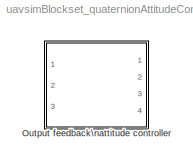
MODEL uavsimBlockset_quaternionAttitudeController
KIND library
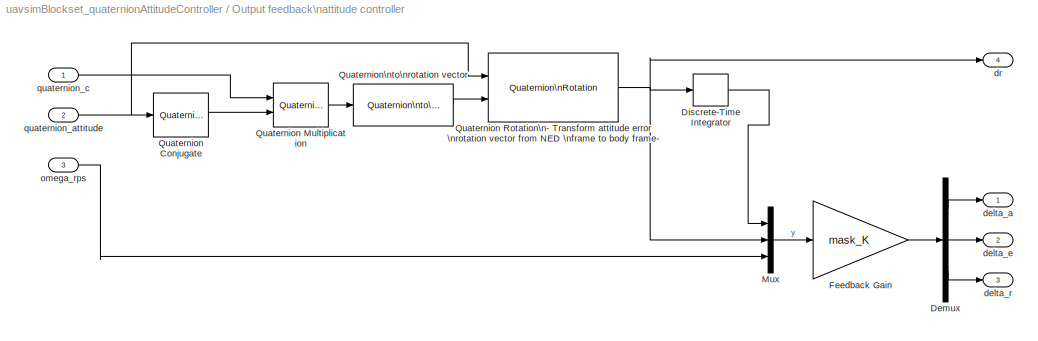
BLOCK [SubSystem] Output feedback\nattitude controller
  FunctionWithSeparateData = off
  MaskHideContents = off
  MinAlgLoopOccurrences = off
  Opaque = off
  Ports = [3, 4]
  PropExecContextOutsideSubsystem = off
  RTWSystemCode = Auto
  RequestExecContextInheritance = off
  SID = 2133
BLOCK [Demux] Output feedback\nattitude controller/Demux
  DisplayOption = bar
  Outputs = 3
  Ports = [1, 3]
  SID = 2217
BLOCK [DiscreteIntegrator] Output feedback\nattitude controller/Discrete-Time Integrator
  ICPrevOutput = DiscIntNeverNeededParam
  ICPrevScaledInput = DiscIntNeverNeededParam
  Ports = [1, 1]
  SID = 4429
  SampleTime = -1
BLOCK [Gain] Output feedback\nattitude controller/Feedback Gain
  Gain = mask_K
  Multiplication = Matrix(K*u)
  OutDataTypeStr = Inherit: Inherit via internal rule
  ParamDataTypeStr = Inherit: Inherit via internal rule
  SID = 2216
  SaturateOnIntegerOverflow = off
BLOCK [Mux] Output feedback\nattitude controller/Mux
  DisplayOption = bar
  Inputs = 3
  Ports = [3, 1]
  SID = 2209
BLOCK [Reference] Output feedback\nattitude controller/Quaternion Conjugate  REF=aerolibutil/Quaternion\nConjugate
  Ports = [1, 1]
  SID = 2233
  SourceBlock = aerolibutil/Quaternion\nConjugate
  SourceType = Quaternion Conjugate
BLOCK [Reference] Output feedback\nattitude controller/Quaternion Multiplication  REF=aerolibutil/Quaternion\nMultiplication
  Ports = [2, 1]
  SID = 2214
  SourceBlock = aerolibutil/Quaternion\nMultiplication
  SourceType = Quaternion Multiplication
BLOCK [Reference] Output feedback\nattitude controller/Quaternion Rotation\n- Transform attitude error \nrotation vector from NED \nframe to body frame-  REF=aerolibutil/Quaternion\nRotation
  Ports = [2, 1]
  SID = 2243
  SourceBlock = aerolibutil/Quaternion\nRotation
  SourceType = Quaternion Rotation
BLOCK [Reference] Output feedback\nattitude controller/Quaternion\nto\nrotation vector  REF=uavsimBlockset_Quaternion2Rotationvector/Quaternion\nto\nrotation vector
  Ports = [1, 1]
  SID = 2213
  SourceBlock = uavsimBlockset_Quaternion2Rotationvector/Quaternion\nto\nrotation vector
  SourceType = SubSystem
BLOCK [Outport] Output feedback\nattitude controller/delta_a
  IconDisplay = Port number
  SID = 2145
BLOCK [Outport] Output feedback\nattitude controller/delta_e
  IconDisplay = Port number
  Port = 2
  SID = 2155
BLOCK [Outport] Output feedback\nattitude controller/delta_r
  IconDisplay = Port number
  Port = 3
  SID = 2146
BLOCK [Outport] Output feedback\nattitude controller/dr
  IconDisplay = Port number
  Port = 4
  SID = 2237
BLOCK [Inport] Output feedback\nattitude controller/omega_rps
  IconDisplay = Port number
  Port = 3
  SID = 2201
BLOCK [Inport] Output feedback\nattitude controller/quaternion_attitude
  IconDisplay = Port number
  Port = 2
  SID = 2202
BLOCK [Inport] Output feedback\nattitude controller/quaternion_c
  IconDisplay = Port number
  SID = 2135
LINE Output feedback\nattitude controller/Demux:1 -> Output feedback\nattitude controller/delta_a:1
LINE Output feedback\nattitude controller/Demux:2 -> Output feedback\nattitude controller/delta_e:1
LINE Output feedback\nattitude controller/Demux:3 -> Output feedback\nattitude controller/delta_r:1
LINE Output feedback\nattitude controller/Discrete-Time Integrator:1 -> Output feedback\nattitude controller/Mux:1
LINE Output feedback\nattitude controller/Feedback Gain:1 -> Output feedback\nattitude controller/Demux:1
LINE Output feedback\nattitude controller/Mux:1 -> Output feedback\nattitude controller/Feedback Gain:1
LINE Output feedback\nattitude controller/Quaternion Conjugate:1 -> Output feedback\nattitude controller/Quaternion Multiplication:2
LINE Output feedback\nattitude controller/Quaternion Multiplication:1 -> Output feedback\nattitude controller/Quaternion\nto\nrotation vector:1
NET Output feedback\nattitude controller/Quaternion Rotation\n- Transform attitude error \nrotation vector from NED \nframe to body frame-:1 -> Output feedback\nattitude controller/Discrete-Time Integrator:1, Output feedback\nattitude controller/Mux:2, Output feedback\nattitude controller/dr:1
LINE Output feedback\nattitude controller/Quaternion\nto\nrotation vector:1 -> Output feedback\nattitude controller/Quaternion Rotation\n- Transform attitude error \nrotation vector from NED \nframe to body frame-:2
LINE Output feedback\nattitude controller/omega_rps:1 -> Output feedback\nattitude controller/Mux:3
NET Output feedback\nattitude controller/quaternion_attitude:1 -> Output feedback\nattitude controller/Quaternion Conjugate:1, Output feedback\nattitude controller/Quaternion Rotation\n- Transform attitude error \nrotation vector from NED \nframe to body frame-:1
LINE Output feedback\nattitude controller/quaternion_c:1 -> Output feedback\nattitude controller/Quaternion Multiplication:1
note: NET lines group one-source signal fan-out (src -> all destinations, sorted); 1:1 wires keep LINE
